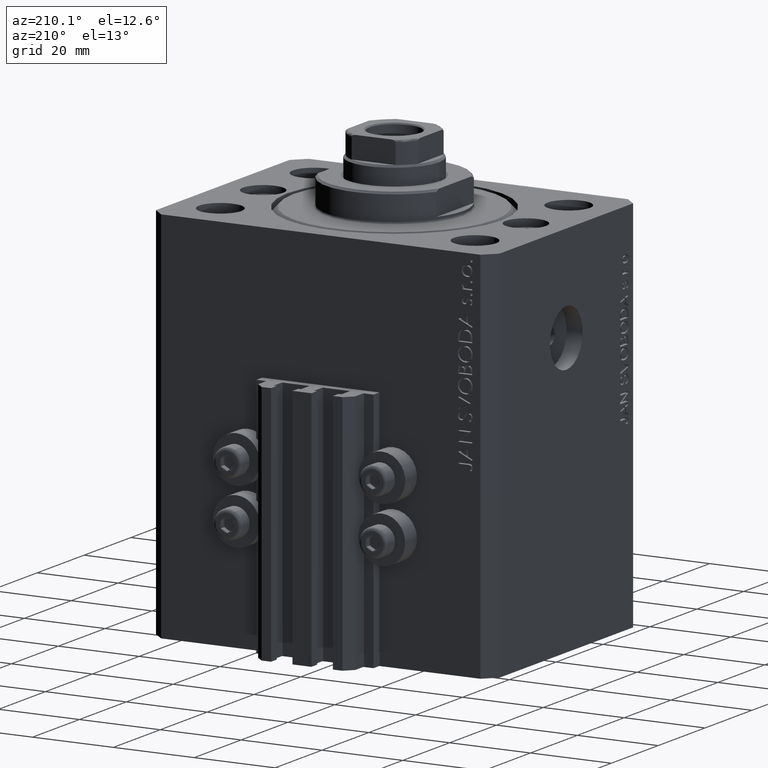
[diagram: clean part render]
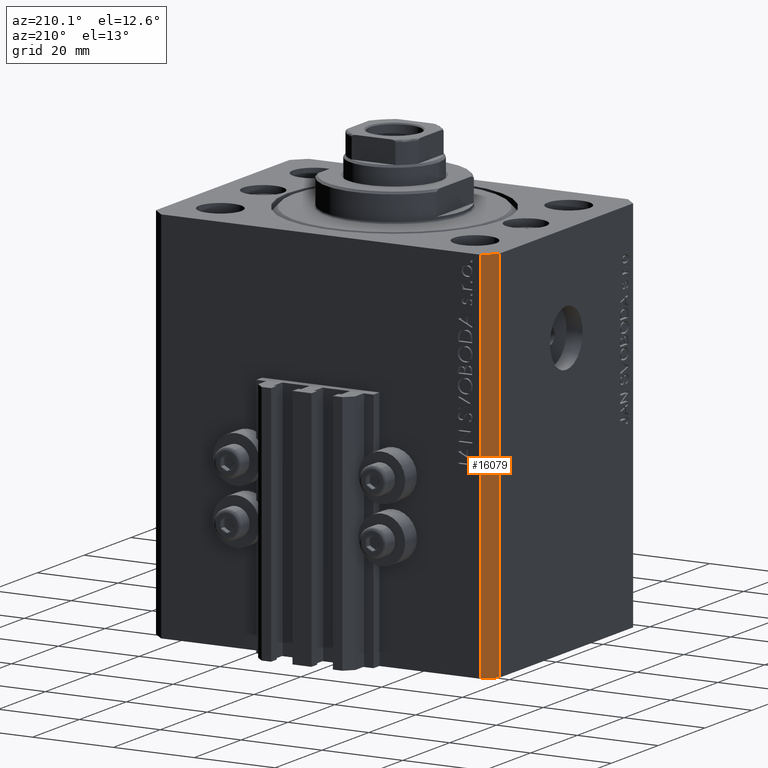
[diagram: same view with one face highlighted and labeled with its STEP entity id]
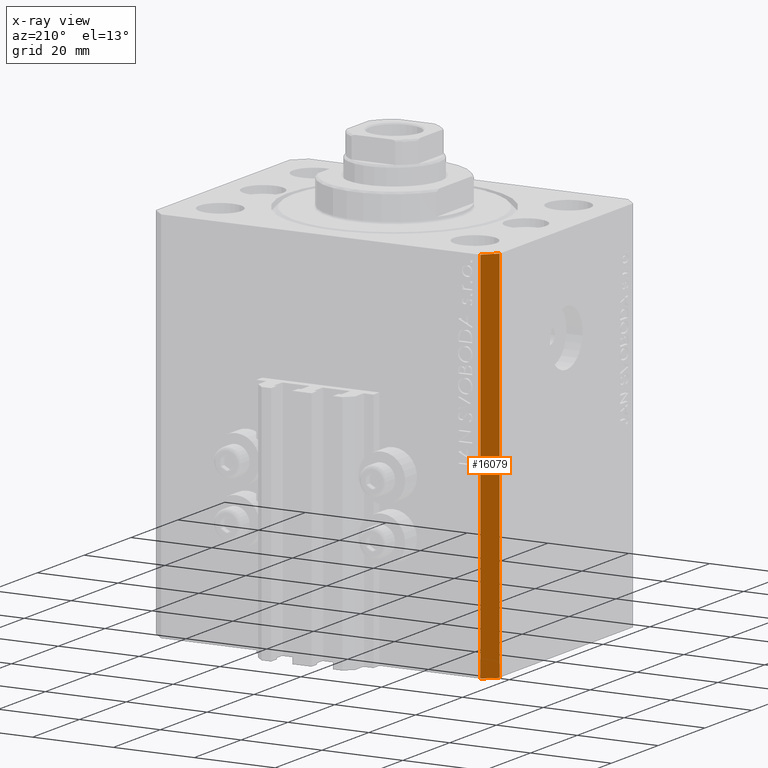
[diagram: x-ray of the same camera — body ghosted, the highlighted face saturated]
A machine part, auxiliary view. The second image highlights one B-rep face of the part: STEP entity #16079.
The next image is the same camera in x-ray: the body ghosted, the highlighted face saturated — about 0% of this face is hidden behind the body in this view.
In plain terms, the highlighted planar face has unit normal (-0.7071, 0.7071, 0).
Its self-contained STEP definition (entity closure, byte-faithful):
#1659 = EDGE_CURVE ( 'NONE', #40867, #34058, #26651, .T. ) ;
#2388 = DIRECTION ( 'NONE',  ( -0.7071067811865471286, -0.7071067811865479058, 0.000000000000000000 ) ) ;
#3475 = CARTESIAN_POINT ( 'NONE',  ( -42.50000000000000000, 28.50000000000000000, -93.00000000000000000 ) ) ;
#3531 = VECTOR ( 'NONE', #37872, 1000.000000000000000 ) ;
#3933 = AXIS2_PLACEMENT_3D ( 'NONE', #31534, #16973, #2388 ) ;
#4077 = VERTEX_POINT ( 'NONE', #27338 ) ;
#4142 = CARTESIAN_POINT ( 'NONE',  ( -42.50000000000000000, 28.50000000000000000, -93.00000000000000000 ) ) ;
#6087 = EDGE_CURVE ( 'NONE', #4077, #46605, #42975, .T. ) ;
#6304 = DIRECTION ( 'NONE',  ( 0.000000000000000000, 0.000000000000000000, 1.000000000000000000 ) ) ;
#8538 = VECTOR ( 'NONE', #28785, 1000.000000000000000 ) ;
#9110 = EDGE_LOOP ( 'NONE', ( #12745, #22259, #35950, #12305 ) ) ;
#10274 = CARTESIAN_POINT ( 'NONE',  ( -39.50000000000000711, 31.50000000000000000, -93.00000000000000000 ) ) ;
#12305 = ORIENTED_EDGE ( 'NONE', *, *, #17104, .T. ) ;
#12745 = ORIENTED_EDGE ( 'NONE', *, *, #1659, .F. ) ;
#13146 = FACE_OUTER_BOUND ( 'NONE', #9110, .T. ) ;
#16079 = ADVANCED_FACE ( 'NONE', ( #13146 ), #16502, .T. ) ;
#16502 = PLANE ( 'NONE',  #3933 ) ;
#16829 = LINE ( 'NONE', #35670, #27988 ) ;
#16973 = DIRECTION ( 'NONE',  ( -0.7071067811865479058, 0.7071067811865471286, 0.000000000000000000 ) ) ;
#17104 = EDGE_CURVE ( 'NONE', #46605, #34058, #46918, .T. ) ;
#21735 = DIRECTION ( 'NONE',  ( -0.7071067811865471286, -0.7071067811865479058, 0.000000000000000000 ) ) ;
#22259 = ORIENTED_EDGE ( 'NONE', *, *, #24774, .F. ) ;
#24774 = EDGE_CURVE ( 'NONE', #4077, #40867, #16829, .T. ) ;
#25796 = VECTOR ( 'NONE', #21735, 1000.000000000000000 ) ;
#26651 = LINE ( 'NONE', #44551, #3531 ) ;
#27338 = CARTESIAN_POINT ( 'NONE',  ( -39.50000000000000711, 31.50000000000000000, -93.00000000000000000 ) ) ;
#27988 = VECTOR ( 'NONE', #6304, 1000.000000000000000 ) ;
#28785 = DIRECTION ( 'NONE',  ( 0.000000000000000000, 0.000000000000000000, 1.000000000000000000 ) ) ;
#31534 = CARTESIAN_POINT ( 'NONE',  ( -39.50000000000000711, 31.50000000000000000, -93.00000000000000000 ) ) ;
#34058 = VERTEX_POINT ( 'NONE', #34869 ) ;
#34869 = CARTESIAN_POINT ( 'NONE',  ( -42.50000000000000000, 28.50000000000000000, 0.000000000000000000 ) ) ;
#35670 = CARTESIAN_POINT ( 'NONE',  ( -39.50000000000000711, 31.50000000000000000, -93.00000000000000000 ) ) ;
#35950 = ORIENTED_EDGE ( 'NONE', *, *, #6087, .T. ) ;
#37872 = DIRECTION ( 'NONE',  ( -0.7071067811865471286, -0.7071067811865479058, 0.000000000000000000 ) ) ;
#38723 = CARTESIAN_POINT ( 'NONE',  ( -39.50000000000000711, 31.50000000000000000, 0.000000000000000000 ) ) ;
#40867 = VERTEX_POINT ( 'NONE', #38723 ) ;
#42975 = LINE ( 'NONE', #10274, #25796 ) ;
#44551 = CARTESIAN_POINT ( 'NONE',  ( -39.50000000000000711, 31.50000000000000000, 0.000000000000000000 ) ) ;
#46605 = VERTEX_POINT ( 'NONE', #4142 ) ;
#46918 = LINE ( 'NONE', #3475, #8538 ) ;